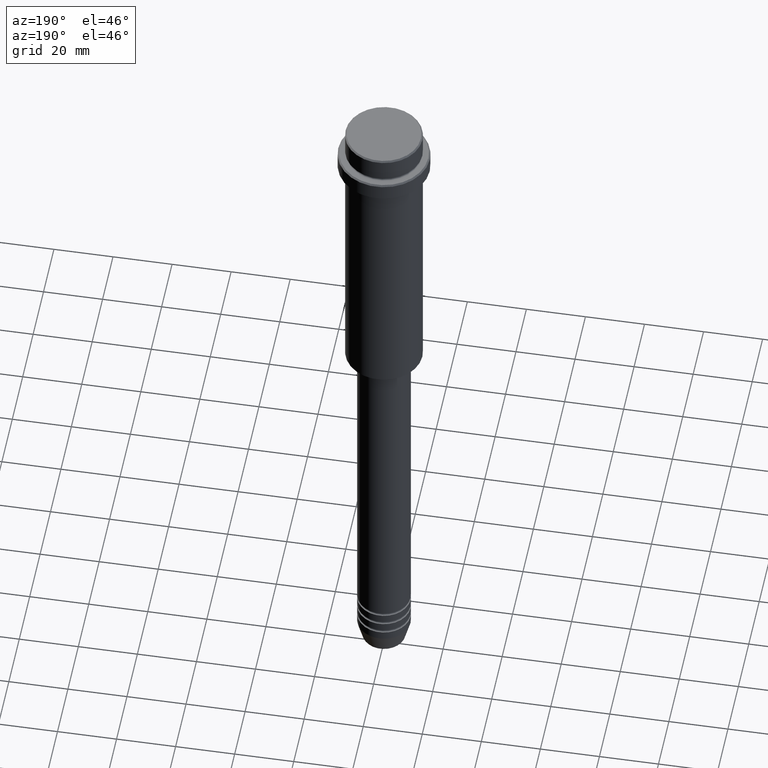
[diagram: clean part render]
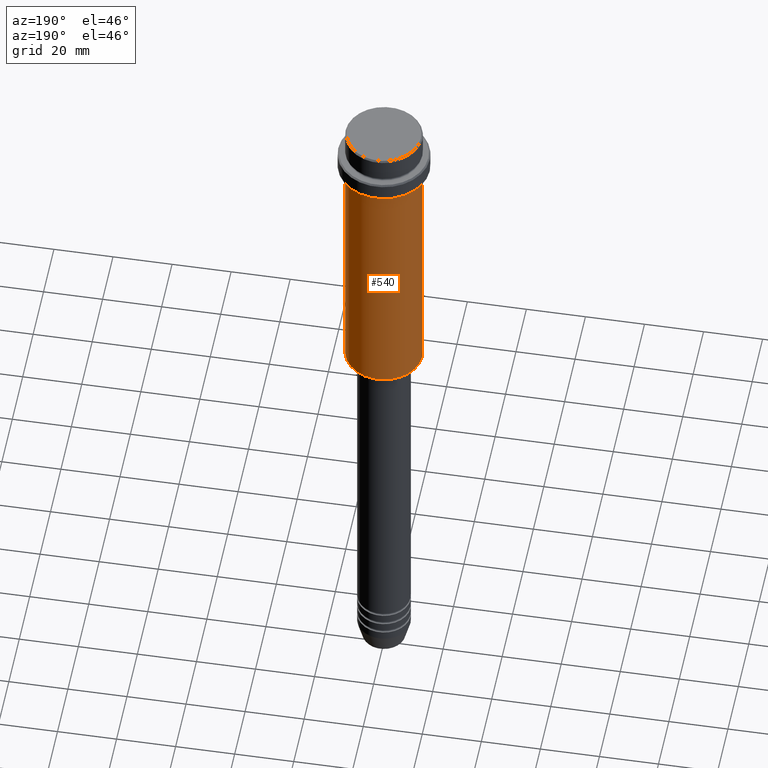
[diagram: same view with one face highlighted and labeled with its STEP entity id]
A machine part, auxiliary view. The second image highlights one B-rep face of the part: STEP entity #540.
In plain terms, the highlighted cylindrical surface (partial cylindrical patch) has radius 13 mm, axis along (-0, -0, 1).
Its self-contained STEP definition (entity closure, byte-faithful):
#21 = VERTEX_POINT ( 'NONE', #1328 ) ;
#27 = AXIS2_PLACEMENT_3D ( 'NONE', #250, #679, #73 ) ;
#33 = DIRECTION ( 'NONE',  ( -0.000000000000000000, -0.000000000000000000, 1.000000000000000000 ) ) ;
#73 = DIRECTION ( 'NONE',  ( 1.000000000000000000, 0.000000000000000000, 0.000000000000000000 ) ) ;
#109 = DIRECTION ( 'NONE',  ( -0.000000000000000000, -0.000000000000000000, 1.000000000000000000 ) ) ;
#148 = CARTESIAN_POINT ( 'NONE',  ( 13.00000000000000000, 0.000000000000000000, 0.000000000000000000 ) ) ;
#229 = EDGE_CURVE ( 'NONE', #21, #1106, #1217, .T. ) ;
#250 = CARTESIAN_POINT ( 'NONE',  ( 0.000000000000000000, 0.000000000000000000, 0.000000000000000000 ) ) ;
#330 = ORIENTED_EDGE ( 'NONE', *, *, #229, .T. ) ;
#335 = VERTEX_POINT ( 'NONE', #1103 ) ;
#399 = CARTESIAN_POINT ( 'NONE',  ( -13.00000000000000000, 1.592040838891559095E-15, -16.00000000000000000 ) ) ;
#431 = CARTESIAN_POINT ( 'NONE',  ( 0.000000000000000000, 0.000000000000000000, -16.00000000000000000 ) ) ;
#535 = ORIENTED_EDGE ( 'NONE', *, *, #658, .F. ) ;
#540 = ADVANCED_FACE ( 'NONE', ( #903 ), #1230, .T. ) ;
#544 = DIRECTION ( 'NONE',  ( 1.000000000000000000, 0.000000000000000000, 0.000000000000000000 ) ) ;
#547 = CARTESIAN_POINT ( 'NONE',  ( 13.00000000000000000, 0.000000000000000000, -104.5000000000000995 ) ) ;
#551 = CARTESIAN_POINT ( 'NONE',  ( -13.00000000000000000, 1.592040838891559095E-15, 0.000000000000000000 ) ) ;
#560 = CIRCLE ( 'NONE', #1360, 13.00000000000000000 ) ;
#578 = LINE ( 'NONE', #148, #947 ) ;
#658 = EDGE_CURVE ( 'NONE', #1148, #335, #578, .T. ) ;
#679 = DIRECTION ( 'NONE',  ( -0.000000000000000000, -0.000000000000000000, 1.000000000000000000 ) ) ;
#871 = VECTOR ( 'NONE', #983, 1000.000000000000000 ) ;
#888 = EDGE_CURVE ( 'NONE', #335, #1106, #1277, .T. ) ;
#903 = FACE_OUTER_BOUND ( 'NONE', #909, .T. ) ;
#909 = EDGE_LOOP ( 'NONE', ( #1173, #330, #1290, #535 ) ) ;
#947 = VECTOR ( 'NONE', #1364, 1000.000000000000000 ) ;
#948 = AXIS2_PLACEMENT_3D ( 'NONE', #431, #33, #544 ) ;
#982 = EDGE_CURVE ( 'NONE', #1148, #21, #560, .T. ) ;
#983 = DIRECTION ( 'NONE',  ( -0.000000000000000000, -0.000000000000000000, 1.000000000000000000 ) ) ;
#1093 = CARTESIAN_POINT ( 'NONE',  ( 0.000000000000000000, 0.000000000000000000, -104.5000000000000995 ) ) ;
#1103 = CARTESIAN_POINT ( 'NONE',  ( 13.00000000000000000, 0.000000000000000000, -16.00000000000000000 ) ) ;
#1106 = VERTEX_POINT ( 'NONE', #399 ) ;
#1148 = VERTEX_POINT ( 'NONE', #547 ) ;
#1173 = ORIENTED_EDGE ( 'NONE', *, *, #982, .T. ) ;
#1217 = LINE ( 'NONE', #551, #871 ) ;
#1230 = CYLINDRICAL_SURFACE ( 'NONE', #27, 13.00000000000000000 ) ;
#1277 = CIRCLE ( 'NONE', #948, 13.00000000000000000 ) ;
#1290 = ORIENTED_EDGE ( 'NONE', *, *, #888, .F. ) ;
#1328 = CARTESIAN_POINT ( 'NONE',  ( -13.00000000000000000, 1.592040838891559095E-15, -104.5000000000000995 ) ) ;
#1348 = DIRECTION ( 'NONE',  ( -1.000000000000000000, 0.000000000000000000, 0.000000000000000000 ) ) ;
#1360 = AXIS2_PLACEMENT_3D ( 'NONE', #1093, #109, #1348 ) ;
#1364 = DIRECTION ( 'NONE',  ( -0.000000000000000000, -0.000000000000000000, 1.000000000000000000 ) ) ;